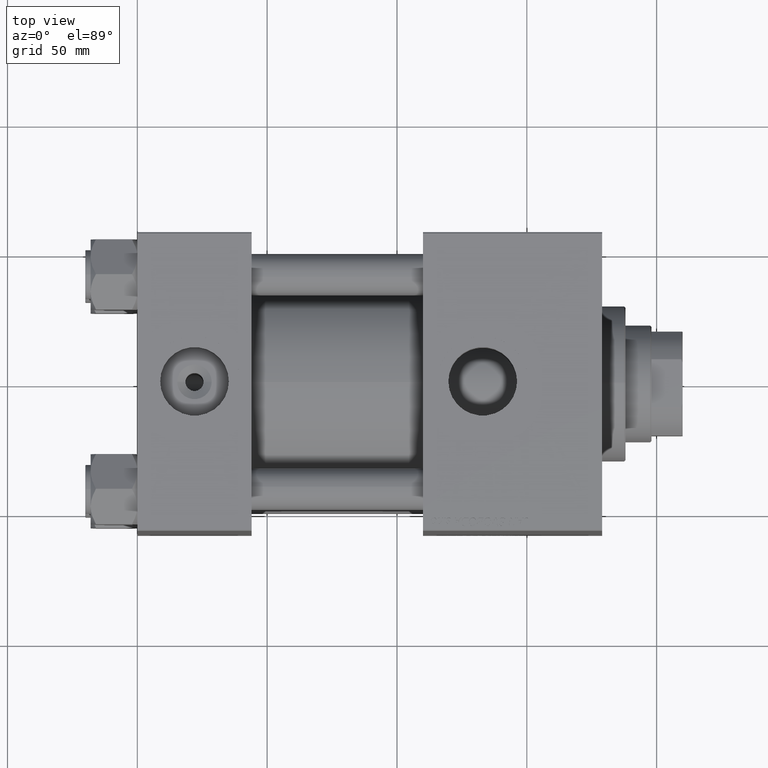
[diagram: clean part render]
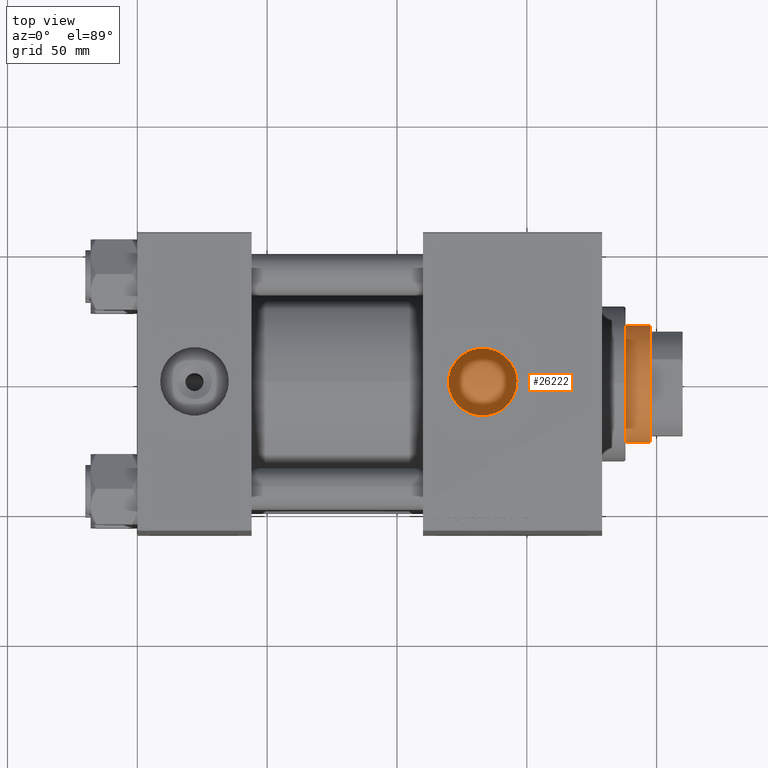
[diagram: same view with one face highlighted and labeled with its STEP entity id]
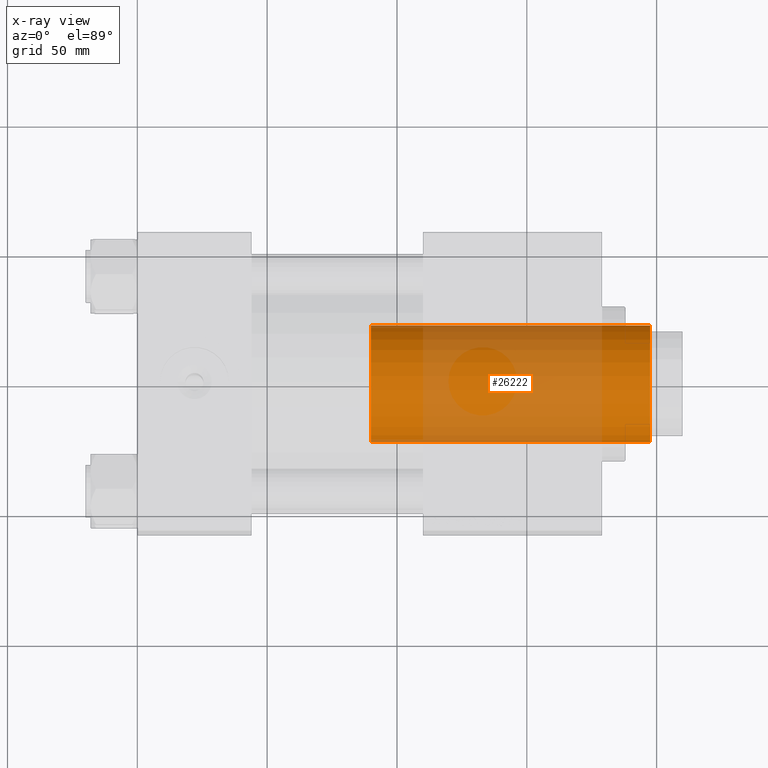
[diagram: x-ray of the same camera — body ghosted, the highlighted face saturated]
A machine part, top view. The second image highlights one B-rep face of the part: STEP entity #26222.
The next image is the same camera in x-ray: the body ghosted, the highlighted face saturated — about 54% of this face is hidden behind the body in this view.
In plain terms, the highlighted cylindrical surface (partial cylindrical patch) has radius 22.5 mm, axis along (-1, 0, 0).
Its self-contained STEP definition (entity closure, byte-faithful):
#560 = AXIS2_PLACEMENT_3D ( 'NONE', #15065, #45171, #37973 ) ;
#2833 = ORIENTED_EDGE ( 'NONE', *, *, #40972, .F. ) ;
#5541 = EDGE_CURVE ( 'NONE', #18983, #19698, #44868, .T. ) ;
#6410 = VERTEX_POINT ( 'NONE', #49761 ) ;
#6772 = CARTESIAN_POINT ( 'NONE',  ( 0.000000000000000000, 0.000000000000000000, 153.5000000000000284 ) ) ;
#9189 = FACE_OUTER_BOUND ( 'NONE', #12404, .T. ) ;
#9865 = ORIENTED_EDGE ( 'NONE', *, *, #31890, .T. ) ;
#12145 = ORIENTED_EDGE ( 'NONE', *, *, #5541, .T. ) ;
#12177 = CARTESIAN_POINT ( 'NONE',  ( 22.50000000000000355, 2.755455298081545172E-15, 154.0000000000000000 ) ) ;
#12404 = EDGE_LOOP ( 'NONE', ( #2833, #9865, #14939, #12145 ) ) ;
#14334 = EDGE_CURVE ( 'NONE', #25583, #18983, #28689, .T. ) ;
#14939 = ORIENTED_EDGE ( 'NONE', *, *, #14334, .T. ) ;
#15065 = CARTESIAN_POINT ( 'NONE',  ( 0.000000000000000000, 0.000000000000000000, 46.00000000000000000 ) ) ;
#16040 = CIRCLE ( 'NONE', #18510, 22.50000000000000355 ) ;
#17411 = CYLINDRICAL_SURFACE ( 'NONE', #29103, 22.50000000000000355 ) ;
#18327 = DIRECTION ( 'NONE',  ( 1.000000000000000000, 0.000000000000000000, 0.000000000000000000 ) ) ;
#18510 = AXIS2_PLACEMENT_3D ( 'NONE', #6772, #19092, #18327 ) ;
#18983 = VERTEX_POINT ( 'NONE', #42750 ) ;
#19092 = DIRECTION ( 'NONE',  ( 0.000000000000000000, 0.000000000000000000, -1.000000000000000000 ) ) ;
#19698 = VERTEX_POINT ( 'NONE', #34669 ) ;
#20211 = DIRECTION ( 'NONE',  ( -0.000000000000000000, -0.000000000000000000, -1.000000000000000000 ) ) ;
#20755 = CARTESIAN_POINT ( 'NONE',  ( 0.000000000000000000, 0.000000000000000000, 154.0000000000000000 ) ) ;
#23626 = VECTOR ( 'NONE', #44036, 1000.000000000000000 ) ;
#24822 = CARTESIAN_POINT ( 'NONE',  ( -22.50000000000000355, 0.000000000000000000, 154.0000000000000000 ) ) ;
#24864 = DIRECTION ( 'NONE',  ( -0.000000000000000000, -0.000000000000000000, -1.000000000000000000 ) ) ;
#25583 = VERTEX_POINT ( 'NONE', #28333 ) ;
#26222 = ADVANCED_FACE ( 'NONE', ( #9189 ), #17411, .T. ) ;
#28333 = CARTESIAN_POINT ( 'NONE',  ( -22.50000000000000355, 0.000000000000000000, 153.5000000000000284 ) ) ;
#28689 = LINE ( 'NONE', #24822, #30262 ) ;
#29103 = AXIS2_PLACEMENT_3D ( 'NONE', #20755, #24864, #40556 ) ;
#30262 = VECTOR ( 'NONE', #20211, 1000.000000000000000 ) ;
#31890 = EDGE_CURVE ( 'NONE', #6410, #25583, #16040, .T. ) ;
#34669 = CARTESIAN_POINT ( 'NONE',  ( 22.50000000000000355, 2.755455298081545172E-15, 46.00000000000000000 ) ) ;
#37973 = DIRECTION ( 'NONE',  ( 1.000000000000000000, 0.000000000000000000, 0.000000000000000000 ) ) ;
#40556 = DIRECTION ( 'NONE',  ( -1.000000000000000000, 0.000000000000000000, 0.000000000000000000 ) ) ;
#40972 = EDGE_CURVE ( 'NONE', #6410, #19698, #44296, .T. ) ;
#42750 = CARTESIAN_POINT ( 'NONE',  ( -22.50000000000000355, 0.000000000000000000, 46.00000000000000000 ) ) ;
#44036 = DIRECTION ( 'NONE',  ( -0.000000000000000000, -0.000000000000000000, -1.000000000000000000 ) ) ;
#44296 = LINE ( 'NONE', #12177, #23626 ) ;
#44868 = CIRCLE ( 'NONE', #560, 22.50000000000000355 ) ;
#45171 = DIRECTION ( 'NONE',  ( 0.000000000000000000, 0.000000000000000000, 1.000000000000000000 ) ) ;
#49761 = CARTESIAN_POINT ( 'NONE',  ( 22.50000000000000355, 2.755455298081545172E-15, 153.5000000000000284 ) ) ;